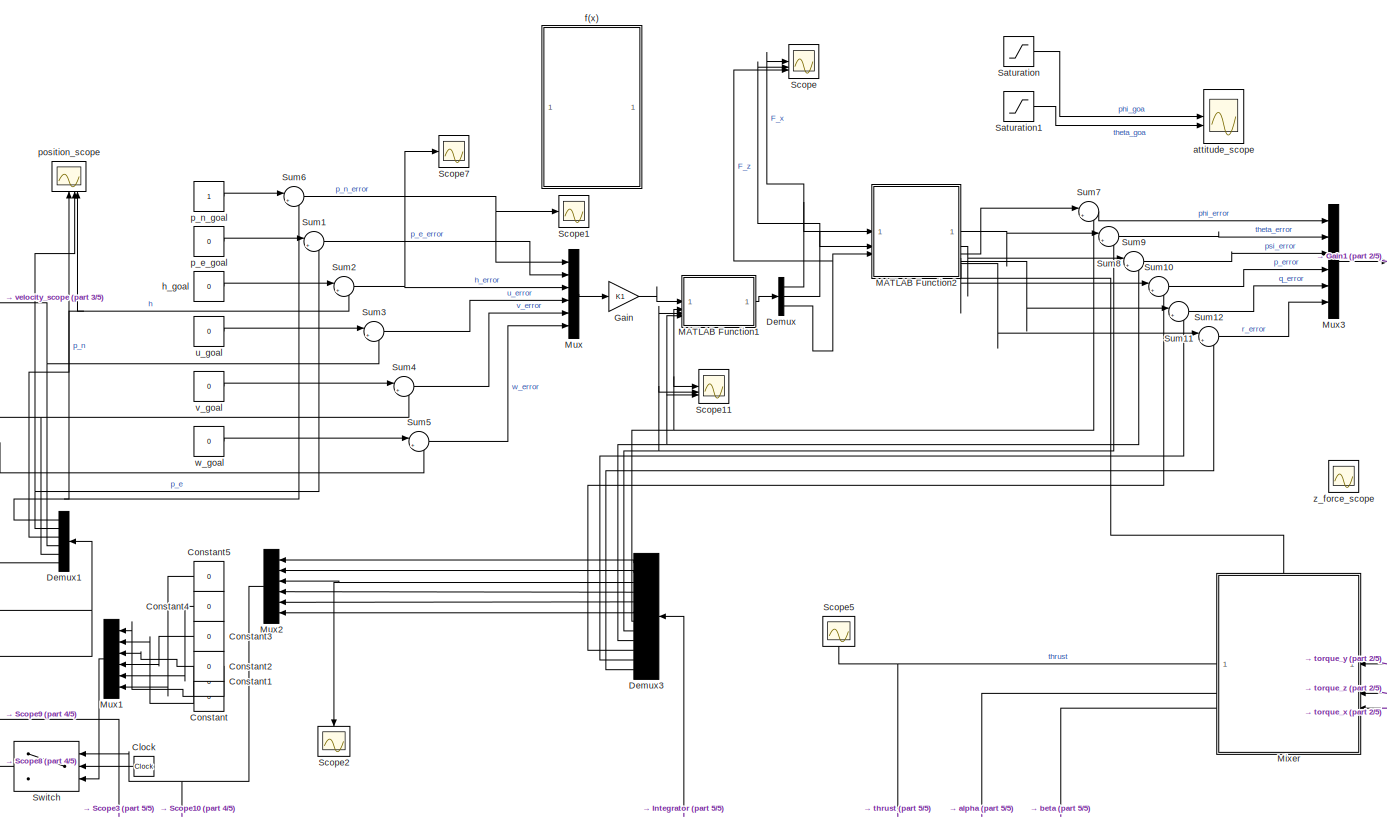
[diagram: root canvas - part 1/5, most of the canvas]
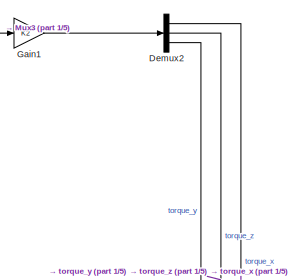
[diagram: root canvas - part 2/5, middle right region]
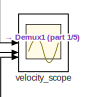
[diagram: root canvas - part 3/5, middle left region]
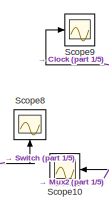
[diagram: root canvas - part 4/5, bottom left region]
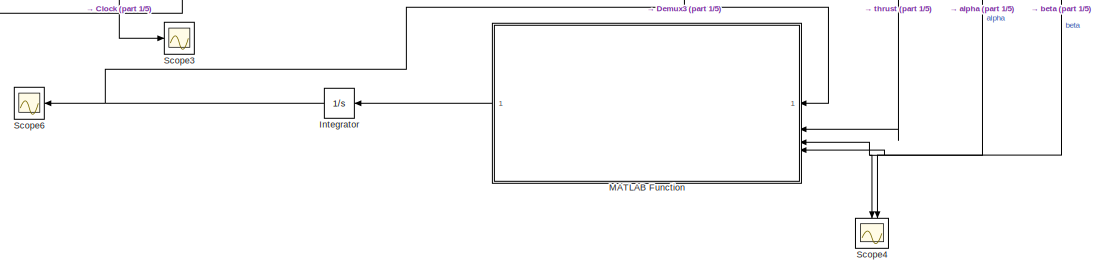
[diagram: root canvas - part 5/5, bottom center region]
MODEL slx_de01d10f3382
KIND model
CONFIG AbsTol = auto
CONFIG EnableMultiTasking = off
CONFIG FixedStep = auto
CONFIG MaxStep = auto
CONFIG MinStep = auto
CONFIG RelTol = 1e-3
CONFIG SampleTimeConstraint = Unconstrained
CONFIG SolverName = VariableStepAuto
CONFIG StartTime = 0.0
CONFIG StopTime = 100
BLOCK [Clock] Clock
  NameLocation = top
BLOCK [Constant] Constant
  NameLocation = top
  Value = 0
BLOCK [Constant] Constant1
  NameLocation = top
  Value = 0
BLOCK [Constant] Constant2
  NameLocation = top
  Value = 0
BLOCK [Constant] Constant3
  NameLocation = top
  Value = 0
BLOCK [Constant] Constant4
  NameLocation = top
  Value = 0
BLOCK [Constant] Constant5
  NameLocation = top
  Value = 0
BLOCK [Demux] Demux
  Outputs = 3
BLOCK [Demux] Demux1
  NameLocation = top
  Outputs = 6
BLOCK [Demux] Demux2
  Outputs = 3
BLOCK [Demux] Demux3
  NameLocation = top
  Outputs = 12
BLOCK [Gain] Gain
  Gain = K1
  Multiplication = Matrix(K*u)
BLOCK [Gain] Gain1
  Gain = K2
  Multiplication = Matrix(K*u)
BLOCK [Integrator] Integrator
  NameLocation = top
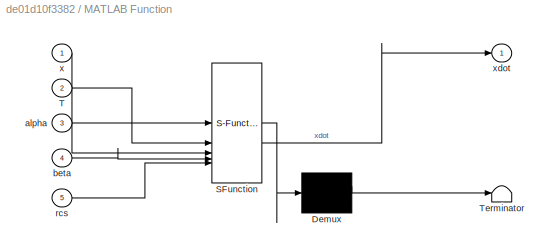
BLOCK [SubSystem] MATLAB Function
  ErrorFcn = Stateflow.Translate.translate
  NameLocation = top
  PermitHierarchicalResolution = ExplicitOnly
  SFBlockType = MATLAB Function
  TreatAsAtomicUnit = on
BLOCK [Demux] MATLAB Function/ Demux 
  Outputs = 1
BLOCK [S-Function] MATLAB Function/ SFunction 
  EnableBusSupport = on
  FunctionName = sf_sfun
  PortCounts = [5 2]
  SFcnIsStateOwnerBlock = off
  SFunctionDeploymentMode = off
  Tag = Stateflow S-Function 2
BLOCK [Terminator] MATLAB Function/ Terminator 
BLOCK [Inport] MATLAB Function/T
  Port = 2
BLOCK [Inport] MATLAB Function/alpha
  Port = 3
BLOCK [Inport] MATLAB Function/beta
  Port = 4
BLOCK [Inport] MATLAB Function/rcs
  Port = 5
BLOCK [Inport] MATLAB Function/x
BLOCK [Outport] MATLAB Function/xdot
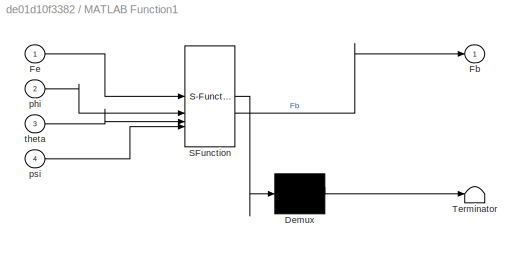
BLOCK [SubSystem] MATLAB Function1
  ErrorFcn = Stateflow.Translate.translate
  PermitHierarchicalResolution = ExplicitOnly
  SFBlockType = MATLAB Function
  TreatAsAtomicUnit = on
BLOCK [Demux] MATLAB Function1/ Demux 
  Outputs = 1
BLOCK [S-Function] MATLAB Function1/ SFunction 
  EnableBusSupport = on
  FunctionName = sf_sfun
  PortCounts = [4 2]
  SFcnIsStateOwnerBlock = off
  SFunctionDeploymentMode = off
  Tag = Stateflow S-Function 1
BLOCK [Terminator] MATLAB Function1/ Terminator 
BLOCK [Outport] MATLAB Function1/Fb
BLOCK [Inport] MATLAB Function1/Fe
BLOCK [Inport] MATLAB Function1/phi
  Port = 2
BLOCK [Inport] MATLAB Function1/psi
  Port = 4
BLOCK [Inport] MATLAB Function1/theta
  Port = 3
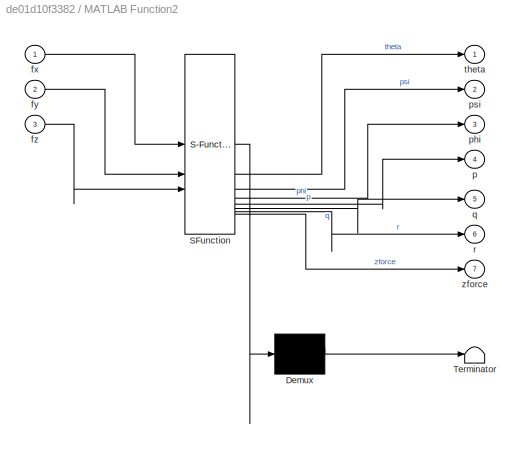
BLOCK [SubSystem] MATLAB Function2
  ErrorFcn = Stateflow.Translate.translate
  PermitHierarchicalResolution = ExplicitOnly
  SFBlockType = MATLAB Function
  TreatAsAtomicUnit = on
BLOCK [Demux] MATLAB Function2/ Demux 
  Outputs = 1
BLOCK [S-Function] MATLAB Function2/ SFunction 
  EnableBusSupport = on
  FunctionName = sf_sfun
  PortCounts = [3 8]
  SFcnIsStateOwnerBlock = off
  SFunctionDeploymentMode = off
  Tag = Stateflow S-Function 3
BLOCK [Terminator] MATLAB Function2/ Terminator 
BLOCK [Inport] MATLAB Function2/fx
BLOCK [Inport] MATLAB Function2/fy
  Port = 2
BLOCK [Inport] MATLAB Function2/fz
  Port = 3
BLOCK [Outport] MATLAB Function2/p
  Port = 4
BLOCK [Outport] MATLAB Function2/phi
  Port = 3
BLOCK [Outport] MATLAB Function2/psi
  Port = 2
BLOCK [Outport] MATLAB Function2/q
  Port = 5
BLOCK [Outport] MATLAB Function2/r
  Port = 6
BLOCK [Outport] MATLAB Function2/theta
BLOCK [Outport] MATLAB Function2/zforce
  Port = 7
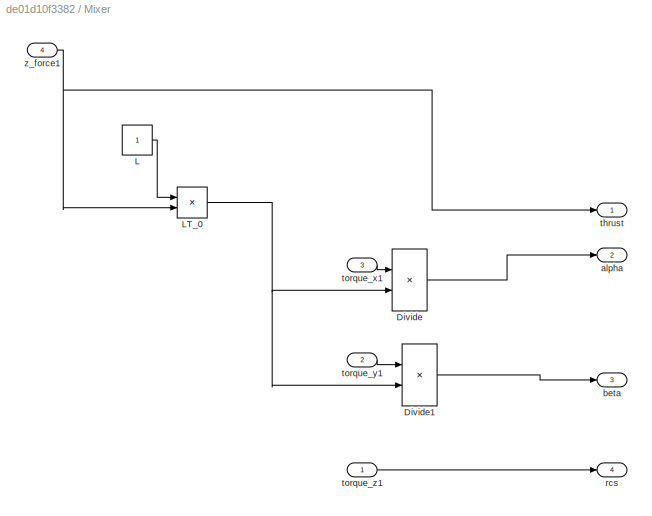
BLOCK [SubSystem] Mixer
  PortSchema = {"entries":[{"content":{"sides":[{"content":{"connectorIds":["In1","In2","In3"]},"type":"ConnectorPlacement.EquallySpacedRectSide","uuid":"e4ab6201-3171-425b-b678-f5a82ca77998"},{"content":{"connectorIds":["Out1","Out2","Out3","Out4"],"side":"RIGHT"},"type":"ConnectorPlacement.EquallySpacedRectSide","uuid":"c6aae40c-8090-4a79-98d3-b60c0d3e66c5"},{"content":{"connectorIds":["In4"],"side":"TOP"},"ty...<+278ch>
BLOCK [Product] Mixer/Divide
  Inputs = */
BLOCK [Product] Mixer/Divide1
  Inputs = */
BLOCK [Constant] Mixer/L
BLOCK [Product] Mixer/LT_0
BLOCK [Outport] Mixer/alpha
  Port = 2
BLOCK [Outport] Mixer/beta
  Port = 3
BLOCK [Outport] Mixer/rcs
  Port = 4
BLOCK [Outport] Mixer/thrust
BLOCK [Inport] Mixer/torque_x1
  Port = 3
BLOCK [Inport] Mixer/torque_y1
  Port = 2
BLOCK [Inport] Mixer/torque_z1
BLOCK [Inport] Mixer/z_force1
  Port = 4
BLOCK [Mux] Mux
  DisplayOption = bar
  Inputs = 6
BLOCK [Mux] Mux1
  DisplayOption = bar
  Inputs = 6
  NameLocation = top
BLOCK [Mux] Mux2
  DisplayOption = bar
  Inputs = 6
  NameLocation = top
BLOCK [Mux] Mux3
  DisplayOption = bar
  Inputs = 6
BLOCK [Saturate] Saturation
  LowerLimit = -5*pi/180
  UpperLimit = 5*pi/180
BLOCK [Saturate] Saturation1
  LowerLimit = -5*pi/180
  UpperLimit = 5*pi/180
BLOCK [Scope] Scope
  Floating = off
  NumInputPorts = 3
  ScopeSpecificationString = Simulink.scopes.TimeScopeBlockCfg('CurrentConfiguration', extmgr.ConfigurationSet(extmgr.Configuration('Core','General UI',true),extmgr.Configuration('Core','Source UI',true),extmgr.Configuration('Sources','WiredSimulink',true,'DataLoggingVariableName','ScopeData1'),extmgr.Configuration('Visuals','Time Domain',true,'SerializedDisplays',{struct('MinYLimReal','-770553.15742','MaxYLimReal','85889.770...<+1597ch>
BLOCK [Scope] Scope1
  Floating = off
  NumInputPorts = 1
  ScopeSpecificationString = Simulink.scopes.TimeScopeBlockCfg('CurrentConfiguration', extmgr.ConfigurationSet(extmgr.Configuration('Core','General UI',true),extmgr.Configuration('Core','Source UI',true),extmgr.Configuration('Sources','WiredSimulink',true,'DataLoggingVariableName','ScopeData1'),extmgr.Configuration('Visuals','Time Domain',true,'SerializedDisplays',{struct('MinYLimReal','-7506.7957','MaxYLimReal','67568.01486'...<+1509ch>
BLOCK [Scope] Scope10
  Floating = off
  NameLocation = top
  NumInputPorts = 1
  ScopeSpecificationString = Simulink.scopes.TimeScopeBlockCfg('CurrentConfiguration', extmgr.ConfigurationSet(extmgr.Configuration('Core','General UI',true),extmgr.Configuration('Core','Source UI',true),extmgr.Configuration('Sources','WiredSimulink',true,'DataLoggingVariableName','ScopeData8'),extmgr.Configuration('Visuals','Time Domain',true,'SerializedDisplays',{struct('MinYLimReal','-113.12323','MaxYLimReal','12.83975','Y...<+1556ch>
BLOCK [Scope] Scope11
  Floating = off
  NumInputPorts = 3
  ScopeSpecificationString = Simulink.scopes.TimeScopeBlockCfg('CurrentConfiguration', extmgr.ConfigurationSet(extmgr.Configuration('Core','General UI',true),extmgr.Configuration('Core','Source UI',true),extmgr.Configuration('Sources','WiredSimulink',true,'DataLoggingVariableName','ScopeData1'),extmgr.Configuration('Visuals','Time Domain',true,'SerializedDisplays',{struct('MinYLimReal','-2752.2776','MaxYLimReal','309.06135','...<+1548ch>
BLOCK [Scope] Scope2
  Floating = off
  NameLocation = left
  NumInputPorts = 1
  ScopeSpecificationString = Simulink.scopes.TimeScopeBlockCfg('CurrentConfiguration', extmgr.ConfigurationSet(extmgr.Configuration('Core','General UI',true),extmgr.Configuration('Core','Source UI',true),extmgr.Configuration('Sources','WiredSimulink',true,'DataLoggingVariableName','ScopeData5'),extmgr.Configuration('Visuals','Time Domain',true,'SerializedDisplays',{struct('MinYLimReal','-113.0928','MaxYLimReal','12.56587','YL...<+1497ch>
BLOCK [Scope] Scope3
  Floating = off
  NumInputPorts = 1
  ScopeSpecificationString = Simulink.scopes.TimeScopeBlockCfg('CurrentConfiguration', extmgr.ConfigurationSet(extmgr.Configuration('Core','General UI',true),extmgr.Configuration('Core','Source UI',true),extmgr.Configuration('Sources','WiredSimulink',true,'DataLoggingVariableName','ScopeData3'),extmgr.Configuration('Visuals','Time Domain',true,'SerializedDisplays',{struct('MinYLimReal','-1.25','MaxYLimReal','11.25','YLabelRea...<+1468ch>
BLOCK [Scope] Scope4
  Floating = off
  NameLocation = left
  NumInputPorts = 2
  ScopeSpecificationString = Simulink.scopes.TimeScopeBlockCfg('CurrentConfiguration', extmgr.ConfigurationSet(extmgr.Configuration('Core','General UI',true),extmgr.Configuration('Core','Source UI',true),extmgr.Configuration('Sources','WiredSimulink',true,'DataLoggingVariableName','ScopeData5'),extmgr.Configuration('Visuals','Time Domain',true,'SerializedDisplays',{struct('MinYLimReal','-1.20787','MaxYLimReal','1.55573','YLab...<+1515ch>
BLOCK [Scope] Scope5
  Floating = off
  NameLocation = left
  NumInputPorts = 1
  ScopeSpecificationString = Simulink.scopes.TimeScopeBlockCfg('CurrentConfiguration', extmgr.ConfigurationSet(extmgr.Configuration('Core','General UI',true),extmgr.Configuration('Core','Source UI',true),extmgr.Configuration('Sources','WiredSimulink',true,'DataLoggingVariableName','ScopeData1'),extmgr.Configuration('Visuals','Time Domain',true,'SerializedDisplays',{struct('MinYLimReal','9.76247','MaxYLimReal','9.87647','YLabe...<+1484ch>
BLOCK [Scope] Scope6
  Floating = off
  NameLocation = top
  NumInputPorts = 1
  ScopeSpecificationString = Simulink.scopes.TimeScopeBlockCfg('CurrentConfiguration', extmgr.ConfigurationSet(extmgr.Configuration('Core','General UI',true),extmgr.Configuration('Core','Source UI',true),extmgr.Configuration('Sources','WiredSimulink',true,'DataLoggingVariableName','ScopeData2'),extmgr.Configuration('Visuals','Time Domain',true,'SerializedDisplays',{struct('MinYLimReal','-113.12592','MaxYLimReal','12.86394','Y...<+1957ch>
BLOCK [Scope] Scope7
  Floating = off
  NumInputPorts = 1
  ScopeSpecificationString = Simulink.scopes.TimeScopeBlockCfg('CurrentConfiguration', extmgr.ConfigurationSet(extmgr.Configuration('Core','General UI',true),extmgr.Configuration('Core','Source UI',true),extmgr.Configuration('Sources','WiredSimulink',true,'DataLoggingVariableName','ScopeData3'),extmgr.Configuration('Visuals','Time Domain',true,'SerializedDisplays',{struct('MinYLimReal','-782.38804','MaxYLimReal','6911.52293',...<+1526ch>
BLOCK [Scope] Scope8
  Floating = off
  NameLocation = right
  NumInputPorts = 1
  ScopeSpecificationString = Simulink.scopes.TimeScopeBlockCfg('CurrentConfiguration', extmgr.ConfigurationSet(extmgr.Configuration('Core','General UI',true),extmgr.Configuration('Core','Source UI',true),extmgr.Configuration('Sources','WiredSimulink',true,'DataLoggingVariableName','ScopeData6'),extmgr.Configuration('Visuals','Time Domain',true,'SerializedDisplays',{struct('MinYLimReal','-113.12323','MaxYLimReal','12.83975','Y...<+1658ch>
BLOCK [Scope] Scope9
  Floating = off
  NumInputPorts = 1
  ScopeSpecificationString = Simulink.scopes.TimeScopeBlockCfg('CurrentConfiguration', extmgr.ConfigurationSet(extmgr.Configuration('Core','General UI',true),extmgr.Configuration('Core','Source UI',true),extmgr.Configuration('Sources','WiredSimulink',true,'DataLoggingVariableName','ScopeData7'),extmgr.Configuration('Visuals','Time Domain',true,'SerializedDisplays',{struct('MinYLimReal','-1.25','MaxYLimReal','11.25','YLabelRea...<+1468ch>
BLOCK [Sum] Sum1
  Inputs = |+-
BLOCK [Sum] Sum10
  Inputs = |+-
BLOCK [Sum] Sum11
  Inputs = |+-
BLOCK [Sum] Sum12
  Inputs = |+-
BLOCK [Sum] Sum2
  Inputs = |+-
BLOCK [Sum] Sum3
  Inputs = |+-
BLOCK [Sum] Sum4
  Inputs = |+-
BLOCK [Sum] Sum5
  Inputs = |+-
BLOCK [Sum] Sum6
  Inputs = |+-
BLOCK [Sum] Sum7
  Inputs = |+-
BLOCK [Sum] Sum8
  Inputs = |+-
BLOCK [Sum] Sum9
  Inputs = |+-
BLOCK [Switch] Switch
  Criteria = u2 > Threshold
  InputSameDT = off
  NameLocation = top
  SaturateOnIntegerOverflow = off
  Threshold = 0.1
BLOCK [Scope] attitude_scope
  Floating = off
  NumInputPorts = 3
  ScopeSpecificationString = Simulink.scopes.TimeScopeBlockCfg('CurrentConfiguration', extmgr.ConfigurationSet(extmgr.Configuration('Core','General UI',true),extmgr.Configuration('Core','Source UI',true),extmgr.Configuration('Sources','WiredSimulink',true,'DataLoggingVariableName','ScopeData2'),extmgr.Configuration('Visuals','Time Domain',true,'SerializedDisplays',{struct('MinYLimReal','-1.77805','MaxYLimReal','0.29452','YLab...<+1505ch>
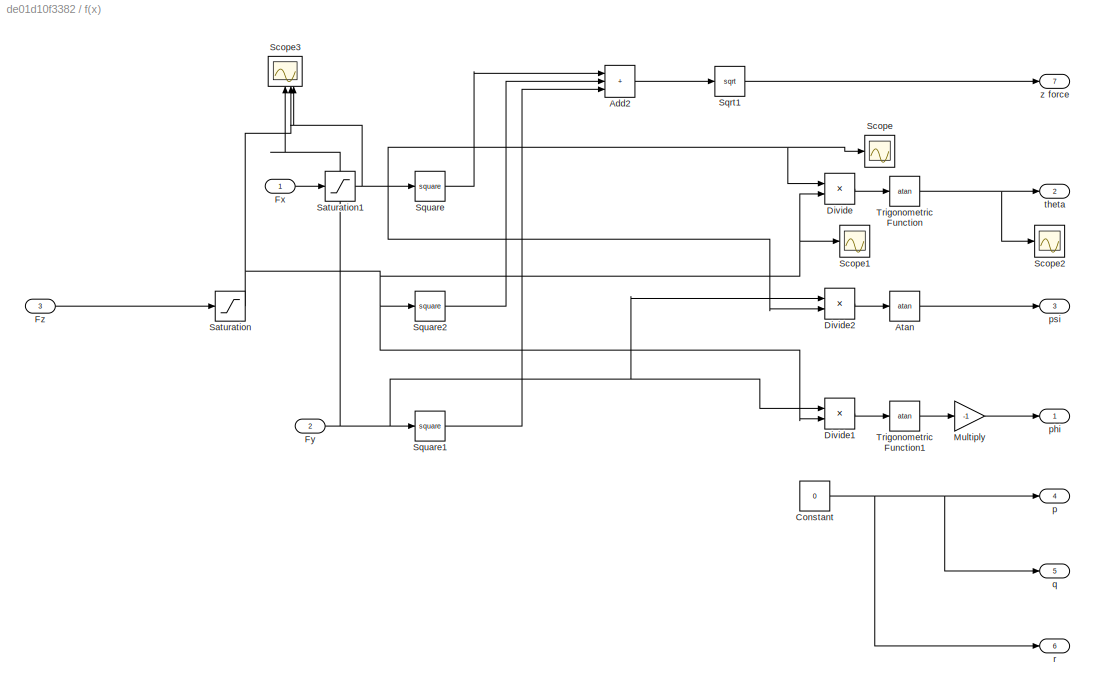
BLOCK [SubSystem] f(x)
  PortSchema = {"entries":[{"content":{"sides":[{"content":{"connectorIds":["In1","In2","In3"]},"type":"ConnectorPlacement.EquallySpacedRectSide","uuid":"e7aeffbb-634f-4153-9868-9d3e2e4280ad"},{"content":{"connectorIds":["Out1","Out2","Out3","Out4","Out5","Out6"],"side":"RIGHT"},"type":"ConnectorPlacement.EquallySpacedRectSide","uuid":"e6d97028-2a10-4268-a5e2-55bbdc39a0c5"},{"content":{"side":"TOP"},"type":"Conn...<+419ch>
BLOCK [Sum] f(x)/Add2
  IconShape = rectangular
  Inputs = +++
BLOCK [Trigonometry] f(x)/Atan
  Operator = atan
BLOCK [Constant] f(x)/Constant
  Value = 0
BLOCK [Product] f(x)/Divide
  Inputs = */
BLOCK [Product] f(x)/Divide1
  Inputs = */
BLOCK [Product] f(x)/Divide2
  Inputs = */
BLOCK [Inport] f(x)/Fx
BLOCK [Inport] f(x)/Fy
  Port = 2
BLOCK [Inport] f(x)/Fz
  Port = 3
BLOCK [Gain] f(x)/Multiply
  Gain = -1
BLOCK [Saturate] f(x)/Saturation
  LowerLimit = 0.00001
  UpperLimit = Inf
BLOCK [Saturate] f(x)/Saturation1
  LowerLimit = 0.00001
  UpperLimit = Inf
BLOCK [Scope] f(x)/Scope
  Floating = off
  NumInputPorts = 1
  ScopeSpecificationString = Simulink.scopes.TimeScopeBlockCfg('CurrentConfiguration', extmgr.ConfigurationSet(extmgr.Configuration('Core','General UI',true),extmgr.Configuration('Core','Source UI',true),extmgr.Configuration('Sources','WiredSimulink',true,'DataLoggingVariableName','ScopeData2'),extmgr.Configuration('Visuals','Time Domain',true,'SerializedDisplays',{struct('MinYLimReal','-123.29037','MaxYLimReal','1109.61346',...<+1506ch>
BLOCK [Scope] f(x)/Scope1
  Floating = off
  NumInputPorts = 1
  ScopeSpecificationString = Simulink.scopes.TimeScopeBlockCfg('CurrentConfiguration', extmgr.ConfigurationSet(extmgr.Configuration('Core','General UI',true),extmgr.Configuration('Core','Source UI',true),extmgr.Configuration('Sources','WiredSimulink',true,'DataLoggingVariableName','ScopeData3'),extmgr.Configuration('Visuals','Time Domain',true,'SerializedDisplays',{struct('MinYLimReal','-14.8364','MaxYLimReal','133.52773','YL...<+1520ch>
BLOCK [Scope] f(x)/Scope2
  Floating = off
  NumInputPorts = 1
  ScopeSpecificationString = Simulink.scopes.TimeScopeBlockCfg('CurrentConfiguration', extmgr.ConfigurationSet(extmgr.Configuration('Core','General UI',true),extmgr.Configuration('Core','Source UI',true),extmgr.Configuration('Sources','WiredSimulink',true,'DataLoggingVariableName','ScopeData4'),extmgr.Configuration('Visuals','Time Domain',true,'SerializedDisplays',{struct('MinYLimReal','-0.19635','MaxYLimReal','1.76715','YLab...<+1525ch>
BLOCK [Scope] f(x)/Scope3
  Floating = off
  NameLocation = right
  NumInputPorts = 3
  ScopeSpecificationString = Simulink.scopes.TimeScopeBlockCfg('CurrentConfiguration', extmgr.ConfigurationSet(extmgr.Configuration('Core','General UI',true),extmgr.Configuration('Core','Source UI',true),extmgr.Configuration('Sources','WiredSimulink',true,'DataLoggingVariableName','ScopeData6'),extmgr.Configuration('Visuals','Time Domain',true,'SerializedDisplays',{struct('MinYLimReal','-17401.4761','MaxYLimReal','14703.48662...<+1624ch>
BLOCK [Sqrt] f(x)/Sqrt1
BLOCK [Math] f(x)/Square
  Operator = square
BLOCK [Math] f(x)/Square1
  Operator = square
BLOCK [Math] f(x)/Square2
  Operator = square
BLOCK [Trigonometry] f(x)/Trigonometric Function
  Operator = atan
BLOCK [Trigonometry] f(x)/Trigonometric Function1
  Operator = atan
BLOCK [Outport] f(x)/p
  Port = 4
BLOCK [Outport] f(x)/phi
BLOCK [Outport] f(x)/psi
  NameLocation = top
  Port = 3
BLOCK [Outport] f(x)/q
  Port = 5
BLOCK [Outport] f(x)/r
  Port = 6
BLOCK [Outport] f(x)/theta
  Port = 2
BLOCK [Outport] f(x)/z force
  Port = 7
BLOCK [Constant] h_goal
  Value = 0
BLOCK [Constant] p_e_goal
  Value = 0
BLOCK [Constant] p_n_goal
BLOCK [Scope] position_scope
  Floating = off
  NameLocation = right
  NumInputPorts = 3
  ScopeSpecificationString = Simulink.scopes.TimeScopeBlockCfg('CurrentConfiguration', extmgr.ConfigurationSet(extmgr.Configuration('Core','General UI',true),extmgr.Configuration('Core','Source UI',true),extmgr.Configuration('Sources','WiredSimulink',true,'DataLoggingVariableName','ScopeData4'),extmgr.Configuration('Visuals','Time Domain',true,'SerializedDisplays',{struct('MinYLimReal','-7894.27339','MaxYLimReal','8873.87403'...<+1579ch>
BLOCK [Constant] u_goal
  Value = 0
BLOCK [Constant] v_goal
  Value = 0
BLOCK [Scope] velocity_scope
  Floating = off
  NumInputPorts = 3
  ScopeSpecificationString = Simulink.scopes.TimeScopeBlockCfg('CurrentConfiguration', extmgr.ConfigurationSet(extmgr.Configuration('Core','General UI',true),extmgr.Configuration('Core','Source UI',true),extmgr.Configuration('Sources','WiredSimulink',true,'DataLoggingVariableName','ScopeData1'),extmgr.Configuration('Visuals','Time Domain',true,'SerializedDisplays',{struct('MinYLimReal','-35.00752','MaxYLimReal','4.16023','YLa...<+1482ch>
BLOCK [Constant] w_goal
  Value = 0
BLOCK [Scope] z_force_scope
  Floating = off
  NumInputPorts = 1
  ScopeSpecificationString = Simulink.scopes.TimeScopeBlockCfg('CurrentConfiguration', extmgr.ConfigurationSet(extmgr.Configuration('Core','General UI',true),extmgr.Configuration('Core','Source UI',true),extmgr.Configuration('Sources','WiredSimulink',true,'DataLoggingVariableName','ScopeData2'),extmgr.Configuration('Visuals','Time Domain',true,'SerializedDisplays',{struct('MinYLimReal','9.76247','MaxYLimReal','9.87647','YLabe...<+1517ch>
NET Clock:1 -> Scope3:1, Scope9:1, Switch:2
LINE Constant1:1 -> Mux1:2
LINE Constant2:1 -> Mux1:3
LINE Constant3:1 -> Mux1:4
LINE Constant4:1 -> Mux1:5
LINE Constant5:1 -> Mux1:6
LINE Constant:1 -> Mux1:1
NET Demux1:1 -> Sum6:2, position_scope:1
NET Demux1:2 -> Sum1:2, position_scope:2
NET Demux1:3 -> Sum2:2, position_scope:3
NET Demux1:4 -> Sum3:2, velocity_scope:1
NET Demux1:5 -> Sum4:2, velocity_scope:2
NET Demux1:6 -> Sum5:2, velocity_scope:3
LINE Demux2:1 -> Mixer:3
LINE Demux2:2 -> Mixer:2
LINE Demux2:3 -> Mixer:1
LINE Demux3:1 -> Mux2:1
LINE Demux3:10 -> Sum10:2
LINE Demux3:11 -> Sum11:2
LINE Demux3:12 -> Sum12:2
LINE Demux3:2 -> Mux2:2
NET Demux3:3 -> Mux2:3, Scope2:1
LINE Demux3:4 -> Mux2:4
LINE Demux3:5 -> Mux2:5
LINE Demux3:6 -> Mux2:6
NET Demux3:7 -> MATLAB Function1:2, Scope11:1, Sum7:2
NET Demux3:8 -> MATLAB Function1:3, Scope11:2, Sum8:2
NET Demux3:9 -> MATLAB Function1:4, Scope11:3, Sum9:2
NET Demux:1 -> MATLAB Function2:1, Scope:1
NET Demux:2 -> MATLAB Function2:2, Scope:2
NET Demux:3 -> MATLAB Function2:3, Scope:3
LINE Gain1:1 -> Demux2:1
LINE Gain:1 -> MATLAB Function1:1
NET Integrator:1 -> Demux3:1, MATLAB Function:1, Scope6:1
LINE MATLAB Function1:1 -> Demux:1
LINE MATLAB Function2:1 -> Sum8:1
LINE MATLAB Function2:2 -> Sum9:1
LINE MATLAB Function2:3 -> Sum7:1
LINE MATLAB Function2:4 -> Sum10:1
LINE MATLAB Function2:5 -> Sum11:1
LINE MATLAB Function2:6 -> Sum12:1
LINE MATLAB Function2:7 -> Mixer:4
LINE MATLAB Function:1 -> Integrator:1
LINE Mixer/Divide1:1 -> Mixer/beta:1
LINE Mixer/Divide:1 -> Mixer/alpha:1
LINE Mixer/L:1 -> Mixer/LT_0:1
NET Mixer/LT_0:1 -> Mixer/Divide1:2, Mixer/Divide:2
LINE Mixer/torque_x1:1 -> Mixer/Divide:1
LINE Mixer/torque_y1:1 -> Mixer/Divide1:1
LINE Mixer/torque_z1:1 -> Mixer/rcs:1
NET Mixer/z_force1:1 -> Mixer/LT_0:2, Mixer/thrust:1
NET Mixer:1 -> MATLAB Function:2, Scope5:1
NET Mixer:2 -> MATLAB Function:3, Scope4:1
NET Mixer:3 -> MATLAB Function:4, Scope4:2
LINE Mux1:1 -> Switch:3
NET Mux2:1 -> Scope10:1, Switch:1
LINE Mux3:1 -> Gain1:1
LINE Mux:1 -> Gain:1
LINE Saturation1:1 -> attitude_scope:2
LINE Saturation:1 -> attitude_scope:1
LINE Sum10:1 -> Mux3:4
LINE Sum11:1 -> Mux3:5
LINE Sum12:1 -> Mux3:6
LINE Sum1:1 -> Mux:2
NET Sum2:1 -> Mux:3, Scope7:1
LINE Sum3:1 -> Mux:4
LINE Sum4:1 -> Mux:5
LINE Sum5:1 -> Mux:6
NET Sum6:1 -> Mux:1, Scope1:1
LINE Sum7:1 -> Mux3:1
LINE Sum8:1 -> Mux3:2
LINE Sum9:1 -> Mux3:3
NET Switch:1 -> Demux1:1, Scope8:1
LINE f(x)/Add2:1 -> f(x)/Sqrt1:1
LINE f(x)/Atan:1 -> f(x)/psi:1
NET f(x)/Constant:1 -> f(x)/p:1, f(x)/q:1, f(x)/r:1
LINE f(x)/Divide1:1 -> f(x)/Trigonometric Function1:1
LINE f(x)/Divide2:1 -> f(x)/Atan:1
LINE f(x)/Divide:1 -> f(x)/Trigonometric Function:1
LINE f(x)/Fx:1 -> f(x)/Saturation1:1
NET f(x)/Fy:1 -> f(x)/Divide1:1, f(x)/Divide2:1, f(x)/Scope3:1, f(x)/Square1:1
LINE f(x)/Fz:1 -> f(x)/Saturation:1
LINE f(x)/Multiply:1 -> f(x)/phi:1
NET f(x)/Saturation1:1 -> f(x)/Divide2:2, f(x)/Divide:1, f(x)/Scope3:3, f(x)/Scope:1, f(x)/Square:1
NET f(x)/Saturation:1 -> f(x)/Divide1:2, f(x)/Divide:2, f(x)/Scope1:1, f(x)/Scope3:2, f(x)/Square2:1
LINE f(x)/Sqrt1:1 -> f(x)/z force:1
LINE f(x)/Square1:1 -> f(x)/Add2:3
LINE f(x)/Square2:1 -> f(x)/Add2:2
LINE f(x)/Square:1 -> f(x)/Add2:1
LINE f(x)/Trigonometric Function1:1 -> f(x)/Multiply:1
NET f(x)/Trigonometric Function:1 -> f(x)/Scope2:1, f(x)/theta:1
LINE h_goal:1 -> Sum2:1
LINE p_e_goal:1 -> Sum1:1
LINE p_n_goal:1 -> Sum6:1
LINE u_goal:1 -> Sum3:1
LINE v_goal:1 -> Sum4:1
LINE w_goal:1 -> Sum5:1
note: NET lines group one-source signal fan-out (src -> all destinations, sorted); 1:1 wires keep LINE
CHART MATLAB Function1 states=1 transitions=1
  STATE_LABEL 'eML_blk_kernel()'
  STATE_LABEL 'SCRIPT:\nfunction Fb = fcn(Fe, phi,theta,psi)\n\nRx = [1, 0, 0;\n    0, cos(phi), -sin(phi);\n    0, sin(phi), cos(phi)]\n\nRy = [cos(theta), 0, sin(theta);\n    0, 1, 0;\n    -sin(theta), 0, cos(theta)]\n\nRz = [cos(psi), sin(psi), 0;\n    sin(psi), cos(psi), 0;\n    0, 0, 1]\n\nrotMat = Rz*Ry*Rx\n\nFe(3) = Fe(3) + 9.81\n\n\nFb = rotMat*Fe;\n'
CHART MATLAB Function states=1 transitions=1
  STATE_LABEL 'eML_blk_kernel()'
  STATE_LABEL "SCRIPT:\n function xdot = fcn(x, T, alpha, beta, rcs)\n\nxdot = [0 0 0 0 0 0 0 0 0 0 0 0]';\n\nm = 1;\ng = 9.81;\nL = 1;\nIxx = 5;\nIyy = 5;\nIzz = 5;\n\n% pn = x(1);\n% pe = x(2);\n% pu = x(3);\nu = x(4);\nv = x(5);\nw = x(6);\nphi = x(7);\ntheta = x(8);\npsi = x(9);\np = x(10);\nq = x(11);\nr = x(12);\n\nxdot(2) = cos(theta)*cos(psi)*u + (sin(phi)*sin(theta)*cos(psi) - cos(phi)*sin(psi))*v + (cos(phi)*sin(theta)*cos(psi...<+759ch>"
CHART MATLAB Function2 states=1 transitions=1
  STATE_LABEL 'eML_blk_kernel()'
  STATE_LABEL 'SCRIPT:\nfunction [theta,psi,phi,p,q,r,zforce]= fcn(fx,fy,fz)\n\n% zforce\nzforce = sqrt(((fx)^2)+((fy)^2)+((fz)^2));\n\n% angular velocities are zero\np = 0;\nq = 0;\nr = 0;\n\n% angle goals\n% as we near our goal, the angle gets smaller\n\n% psi/yaw\nif (fx > 10) \n    phi = 10 * (pi/180);\nelseif (fx > 5)\n    phi = 5 * (pi/180);\nelseif (fx > 1)\n    phi = 3 * (pi/180);\nelseif (1 > fx > 0)\n    phi = 1 * (pi/180);...<+393ch>'
CHART  states=0 transitions=0
CHART  states=0 transitions=0
CHART  states=0 transitions=0
